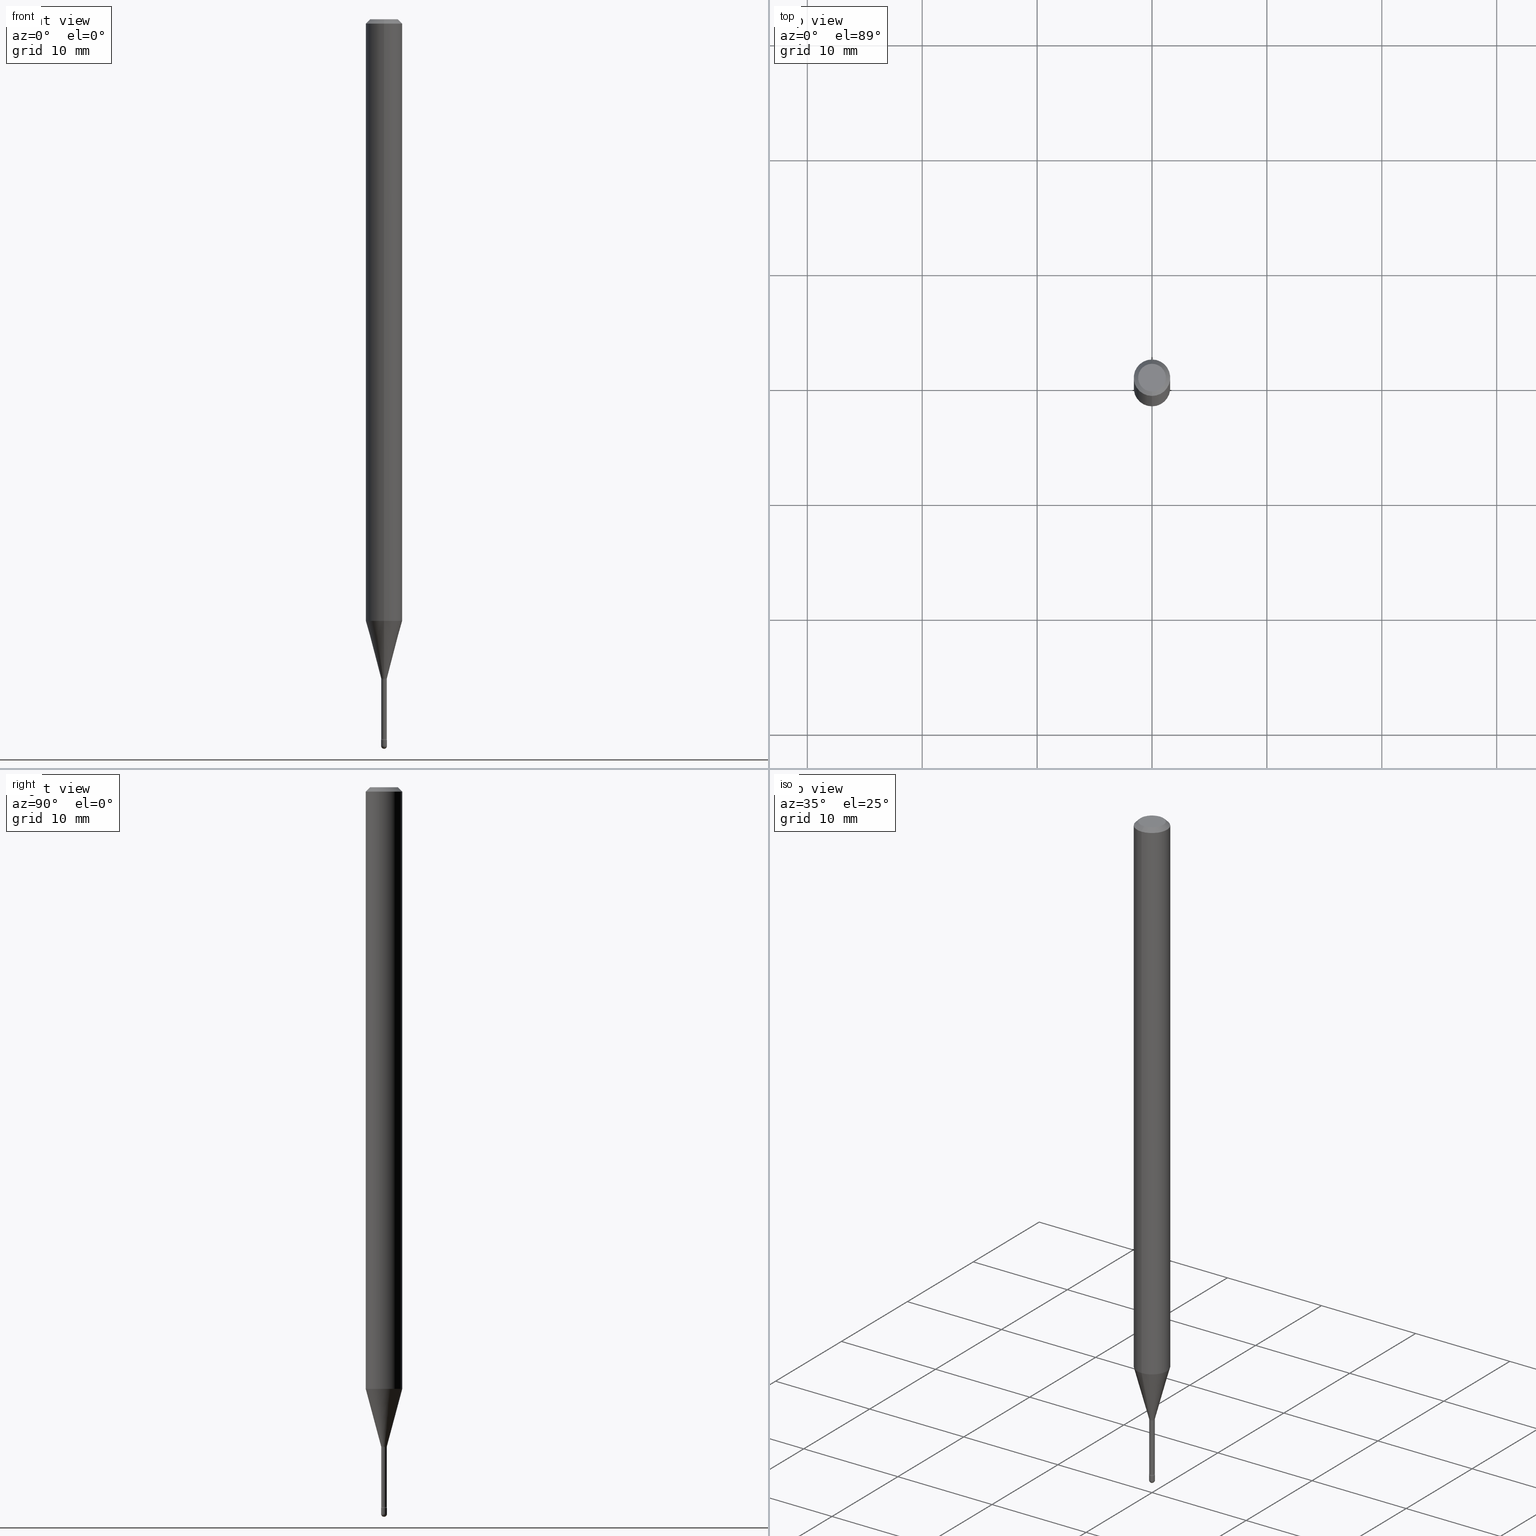
[diagram: canonical four-view strip — front | top / right | iso, engineering-drawing reading convention]
A machine part, canonical four-view strip (front | top / right | iso — engineering-drawing reading convention). The complete STEP part file that produces these views, byte-faithful:
ISO-10303-21;
HEADER;
FILE_DESCRIPTION (( 'STEP AP203' ),
    '1' );
FILE_NAME ('03888.STEP',
    '2024-04-09T20:58:14',
    ( '' ),
    ( '' ),
    'SwSTEP 2.0',
    'SolidWorks 2023',
    '' );
FILE_SCHEMA (( 'CONFIG_CONTROL_DESIGN' ));
ENDSEC;

DATA;
#1 = ORIENTED_EDGE ( 'NONE', *, *, #83, .T. ) ;
#2 = APPROVAL ( #254, 'UNSPECIFIED' ) ;
#3 = DIRECTION ( 'NONE',  ( 4.937700262164548042E-15, 0.7071067811865451302, -0.7071067811865499042 ) ) ;
#4 = DIRECTION ( 'NONE',  ( -6.982962677686265922E-15, -1.000000000000000000, 3.491553223842570577E-15 ) ) ;
#5 = AXIS2_PLACEMENT_3D ( 'NONE', #42, #261, #128 ) ;
#6 = ORIENTED_EDGE ( 'NONE', *, *, #66, .F. ) ;
#7 = DIRECTION ( 'NONE',  ( 6.982962677686265922E-15, 1.000000000000000000, -3.483106191921935554E-15 ) ) ;
#8 = ORIENTED_EDGE ( 'NONE', *, *, #11, .T. ) ;
#9 = ORIENTED_EDGE ( 'NONE', *, *, #522, .F. ) ;
#10 = CARTESIAN_POINT ( 'NONE',  ( 6.040183964621077171E-29, -8.624136462891145633E-15, -2.470000000000000195 ) ) ;
#11 = EDGE_CURVE ( 'NONE', #94, #16, #483, .T. ) ;
#12 = EDGE_LOOP ( 'NONE', ( #553, #371, #146, #44 ) ) ;
#13 = ORIENTED_EDGE ( 'NONE', *, *, #188, .T. ) ;
#14 = DIRECTION ( 'NONE',  ( 6.982962677686265922E-15, 1.000000000000000000, -3.491553223842568605E-15 ) ) ;
#15 = CC_DESIGN_PERSON_AND_ORGANIZATION_ASSIGNMENT ( #514, #244, ( #455 ) ) ;
#16 = VERTEX_POINT ( 'NONE', #231 ) ;
#17 = CIRCLE ( 'NONE', #501, 0.009400000000000002104 ) ;
#18 = CIRCLE ( 'NONE', #93, 0.01500000000000000638 ) ;
#19 = DIRECTION ( 'NONE',  ( -2.438088387897960049E-29, 3.491481338843145188E-15, 1.000000000000000000 ) ) ;
#20 = LENGTH_MEASURE_WITH_UNIT ( LENGTH_MEASURE( 0.02539999999999999897 ), #488 );
#21 = ORIENTED_EDGE ( 'NONE', *, *, #432, .T. ) ;
#22 = CARTESIAN_POINT ( 'NONE',  ( -0.01000000000000000021, -8.587819446754991563E-15, -2.470000000000000195 ) ) ;
#23 = DATE_TIME_ROLE ( 'classification_date' ) ;
#24 = ADVANCED_FACE ( 'NONE', ( #394 ), #222, .T. ) ;
#25 = DIMENSIONAL_EXPONENTS ( 1.000000000000000000, 0.000000000000000000, 0.000000000000000000, 0.000000000000000000, 0.000000000000000000, 0.000000000000000000, 0.000000000000000000 ) ;
#26 = ORIENTED_EDGE ( 'NONE', *, *, #168, .F. ) ;
#27 = DIRECTION ( 'NONE',  ( 2.445418609158330571E-29, -3.491553223842568999E-15, -1.000000000000000000 ) ) ;
#28 = PERSON_AND_ORGANIZATION ( #210, #191 ) ;
#29 = CYLINDRICAL_SURFACE ( 'NONE', #554, 0.06250000000000000000 ) ;
#30 = CONICAL_SURFACE ( 'NONE', #256, 0.009911112605663977004, 0.2617993877991500740 ) ;
#31 = ORIENTED_EDGE ( 'NONE', *, *, #404, .F. ) ;
#32 = DIRECTION ( 'NONE',  ( -6.982962677686265133E-15, -1.000000000000000000, 0.000000000000000000 ) ) ;
#33 = CIRCLE ( 'NONE', #536, 0.01000000000000000021 ) ;
#34 = CALENDAR_DATE ( 2024, 9, 4 ) ;
#35 = CARTESIAN_POINT ( 'NONE',  ( 3.840629472727447874E-16, 0.04749999999999999362, -2.485923956665948360E-16 ) ) ;
#36 = ADVANCED_FACE ( 'NONE', ( #265 ), #495, .T. ) ;
#37 = VERTEX_POINT ( 'NONE', #433 ) ;
#38 = ORIENTED_EDGE ( 'NONE', *, *, #419, .T. ) ;
#39 = PERSON_AND_ORGANIZATION ( #210, #191 ) ;
#40 = AXIS2_PLACEMENT_3D ( 'NONE', #199, #421, #32 ) ;
#41 = AXIS2_PLACEMENT_3D ( 'NONE', #354, #490, #7 ) ;
#42 = CARTESIAN_POINT ( 'NONE',  ( 6.089217327400989947E-29, -8.693788533719431716E-15, -2.489999999999999769 ) ) ;
#43 = EDGE_CURVE ( 'NONE', #398, #420, #33, .T. ) ;
#44 = ORIENTED_EDGE ( 'NONE', *, *, #90, .F. ) ;
#45 = DIRECTION ( 'NONE',  ( 1.000000000000000000, -6.982962677686235945E-15, 0.000000000000000000 ) ) ;
#46 = LINE ( 'NONE', #272, #123 ) ;
#47 = CONICAL_SURFACE ( 'NONE', #435, 0.009911112605663977004, 0.2617993877991500740 ) ;
#48 = CARTESIAN_POINT ( 'NONE',  ( 0.000000000000000000, 0.000000000000000000, 0.000000000000000000 ) ) ;
#49 = AXIS2_PLACEMENT_3D ( 'NONE', #527, #141, #565 ) ;
#50 = CARTESIAN_POINT ( 'NONE',  ( 6.030036982291310238E-29, -8.609294685319429365E-15, -2.465800000000000214 ) ) ;
#51 = CC_DESIGN_APPROVAL ( #312, ( #53 ) ) ;
#52 = CARTESIAN_POINT ( 'NONE',  ( -6.563984917019559422E-17, -0.009400000000007898565, -2.261974787463811420 ) ) ;
#53 = PRODUCT_DEFINITION ( 'UNKNOWN', '', #96, #234 ) ;
#54 = CARTESIAN_POINT ( 'NONE',  ( -1.703842893354847853E-16, -0.02440000000000863700, -2.465800000000000214 ) ) ;
#55 = CARTESIAN_POINT ( 'NONE',  ( 4.440892098501133005E-16, 0.06249999999999995143, -0.01500000000000030129 ) ) ;
#56 = DIRECTION ( 'NONE',  ( -2.445468806185136597E-29, 3.491481338843145583E-15, 1.000000000000000000 ) ) ;
#57 = LINE ( 'NONE', #431, #347 ) ;
#58 = EDGE_LOOP ( 'NONE', ( #413, #9 ) ) ;
#59 = CIRCLE ( 'NONE', #387, 0.009400000000000024655 ) ;
#60 = ORIENTED_EDGE ( 'NONE', *, *, #326, .T. ) ;
#61 = DIRECTION ( 'NONE',  ( -2.445418609158330571E-29, 3.491553223842568999E-15, 1.000000000000000000 ) ) ;
#62 = CARTESIAN_POINT ( 'NONE',  ( 0.01000000000000000021, -8.693788533719433294E-15, -2.470000000000000195 ) ) ;
#63 = CIRCLE ( 'NONE', #523, 0.04749999999999999362 ) ;
#64 = VECTOR ( 'NONE', #3, 39.37007874015748143 ) ;
#65 = PLANE ( 'NONE',  #301 ) ;
#66 = EDGE_CURVE ( 'NONE', #468, #310, #437, .T. ) ;
#67 = LOCAL_TIME ( 16, 58, 14.00000000000000000, #340 ) ;
#68 = DIRECTION ( 'NONE',  ( 6.982962677686265133E-15, 1.000000000000000000, 0.000000000000000000 ) ) ;
#69 = APPROVAL_ROLE ( '' ) ;
#70 = ORIENTED_EDGE ( 'NONE', *, *, #487, .T. ) ;
#71 = DIRECTION ( 'NONE',  ( -6.982962677686265922E-15, -1.000000000000000000, 0.000000000000000000 ) ) ;
#72 = DIRECTION ( 'NONE',  ( 1.839019923739598738E-15, 0.2588190451025247363, 0.9659258262890673130 ) ) ;
#73 = EDGE_CURVE ( 'NONE', #468, #186, #315, .T. ) ;
#74 = EDGE_LOOP ( 'NONE', ( #384, #460, #539, #31 ) ) ;
#75 = DIRECTION ( 'NONE',  ( -6.982962677686266711E-15, -1.000000000000000000, 3.491553223842569394E-15 ) ) ;
#76 = CC_DESIGN_APPROVAL ( #2, ( #96 ) ) ;
#77 = VERTEX_POINT ( 'NONE', #52 ) ;
#78 = CALENDAR_DATE ( 2024, 9, 4 ) ;
#79 = ORIENTED_EDGE ( 'NONE', *, *, #163, .T. ) ;
#80 = CARTESIAN_POINT ( 'NONE',  ( 5.521981425071489168E-29, -7.884250154350085352E-15, -2.258092501787273498 ) ) ;
#81 = CIRCLE ( 'NONE', #237, 0.01499999999999999771 ) ;
#82 = LINE ( 'NONE', #87, #338 ) ;
#83 = EDGE_CURVE ( 'NONE', #507, #77, #46, .T. ) ;
#84 = AXIS2_PLACEMENT_3D ( 'NONE', #321, #531, #98 ) ;
#85 = CYLINDRICAL_SURFACE ( 'NONE', #368, 0.01000000000000000021 ) ;
#86 = EDGE_LOOP ( 'NONE', ( #408, #428, #211, #70 ) ) ;
#87 = CARTESIAN_POINT ( 'NONE',  ( -6.920892941964220806E-17, -0.009911112605671861323, -2.258092501787273498 ) ) ;
#88 = ORIENTED_EDGE ( 'NONE', *, *, #226, .F. ) ;
#89 = DIRECTION ( 'NONE',  ( -2.445468806185136597E-29, 3.491481338843145583E-15, 1.000000000000000000 ) ) ;
#90 = EDGE_CURVE ( 'NONE', #288, #175, #213, .T. ) ;
#91 = CARTESIAN_POINT ( 'NONE',  ( -1.169113584055446105E-44, 1.669184350826100908E-30, 4.780733988912460139E-16 ) ) ;
#92 = CIRCLE ( 'NONE', #328, 0.01000000000000000021 ) ;
#93 = AXIS2_PLACEMENT_3D ( 'NONE', #350, #221, #526 ) ;
#94 = VERTEX_POINT ( 'NONE', #356 ) ;
#95 = CARTESIAN_POINT ( 'NONE',  ( 6.040307951277287977E-29, -8.623958906942569995E-15, -2.470000000000000195 ) ) ;
#96 = PRODUCT_DEFINITION_FORMATION_WITH_SPECIFIED_SOURCE ( 'ANY', '', #149, .NOT_KNOWN. ) ;
#97 = CARTESIAN_POINT ( 'NONE',  ( 6.040307951277287977E-29, -8.623958906942569995E-15, -2.470000000000000195 ) ) ;
#98 = DIRECTION ( 'NONE',  ( -6.982962677686265922E-15, -1.000000000000000000, 0.000000000000000000 ) ) ;
#99 = VERTEX_POINT ( 'NONE', #172 ) ;
#100 = FACE_OUTER_BOUND ( 'NONE', #86, .T. ) ;
#101 = ADVANCED_FACE ( 'NONE', ( #351 ), #219, .F. ) ;
#102 = VECTOR ( 'NONE', #369, 39.37007874015748143 ) ;
#103 = VERTEX_POINT ( 'NONE', #139 ) ;
#104 = LOCAL_TIME ( 16, 58, 14.00000000000000000, #154 ) ;
#105 = ORIENTED_EDGE ( 'NONE', *, *, #336, .T. ) ;
#106 = DIRECTION ( 'NONE',  ( 1.000000000000000000, -6.982962677686235945E-15, 0.000000000000000000 ) ) ;
#107 = CC_DESIGN_DATE_AND_TIME_ASSIGNMENT ( #555, #162, ( #53 ) ) ;
#108 = DATE_AND_TIME ( #423, #67 ) ;
#109 = CIRCLE ( 'NONE', #543, 0.01000000000000000021 ) ;
#110 = CIRCLE ( 'NONE', #424, 0.01500000000000002720 ) ;
#111 = FACE_OUTER_BOUND ( 'NONE', #195, .T. ) ;
#112 = APPROVAL_DATE_TIME ( #108, #2 ) ;
#113 = DIRECTION ( 'NONE',  ( 1.000000000000000000, -6.982962677686235945E-15, 0.000000000000000000 ) ) ;
#114 = EDGE_LOOP ( 'NONE', ( #198, #21 ) ) ;
#115 = DATE_AND_TIME ( #293, #378 ) ;
#116 = ADVANCED_FACE ( 'NONE', ( #100 ), #357, .F. ) ;
#117 = DIRECTION ( 'NONE',  ( 1.000000000000000000, -6.982962677686235945E-15, 0.000000000000000000 ) ) ;
#118 = MANIFOLD_SOLID_BREP ( 'Body-Move/Copy2[1]', #446 ) ;
#119 = ORIENTED_EDGE ( 'NONE', *, *, #163, .F. ) ;
#120 = FACE_OUTER_BOUND ( 'NONE', #548, .T. ) ;
#121 = CC_DESIGN_DATE_AND_TIME_ASSIGNMENT ( #415, #23, ( #455 ) ) ;
#122 = CONICAL_SURFACE ( 'NONE', #493, 0.06250000000000000000, 0.7853981633974483900 ) ;
#123 = VECTOR ( 'NONE', #441, 39.37007874015748143 ) ;
#124 = APPROVAL_DATE_TIME ( #297, #312 ) ;
#125 = CC_DESIGN_APPROVAL ( #524, ( #455 ) ) ;
#126 = ORIENTED_EDGE ( 'NONE', *, *, #364, .T. ) ;
#127 = LINE ( 'NONE', #300, #180 ) ;
#128 = DIRECTION ( 'NONE',  ( -7.105427357601000281E-15, -1.000000000000000000, 0.000000000000000000 ) ) ;
#129 = CIRCLE ( 'NONE', #443, 0.01000000000000008347 ) ;
#130 = DIRECTION ( 'NONE',  ( -6.982962677686265922E-15, -1.000000000000000000, 0.000000000000000000 ) ) ;
#131 = CARTESIAN_POINT ( 'NONE',  ( -7.105427357594942569E-17, -0.01000000000000873281, -2.489999999999999769 ) ) ;
#132 = AXIS2_PLACEMENT_3D ( 'NONE', #335, #517, #286 ) ;
#133 = ADVANCED_FACE ( 'NONE', ( #444 ), #448, .F. ) ;
#134 = DIRECTION ( 'NONE',  ( -2.445418609158330571E-29, 3.491553223842568999E-15, 1.000000000000000000 ) ) ;
#135 = DIRECTION ( 'NONE',  ( -2.445418609158330571E-29, 3.491553223842568999E-15, 1.000000000000000000 ) ) ;
#136 = LINE ( 'NONE', #260, #64 ) ;
#137 = ORIENTED_EDGE ( 'NONE', *, *, #188, .F. ) ;
#138 = ORIENTED_EDGE ( 'NONE', *, *, #535, .T. ) ;
#139 = CARTESIAN_POINT ( 'NONE',  ( 7.105427357607040490E-17, 0.009999999999991376898, -2.470000000000000195 ) ) ;
#140 = EDGE_CURVE ( 'NONE', #333, #183, #136, .T. ) ;
#141 = DIRECTION ( 'NONE',  ( -2.445468806185136597E-29, 3.491481338843145583E-15, 1.000000000000000000 ) ) ;
#142 = APPROVAL_PERSON_ORGANIZATION ( #551, #2, #69 ) ;
#143 = DIRECTION ( 'NONE',  ( -2.445418609158330571E-29, 3.491553223842568999E-15, 1.000000000000000000 ) ) ;
#144 = ADVANCED_FACE ( 'NONE', ( #485 ), #436, .F. ) ;
#145 = CARTESIAN_POINT ( 'NONE',  ( 6.089217327400989947E-29, -8.693788533719431716E-15, -2.489999999999999769 ) ) ;
#146 = ORIENTED_EDGE ( 'NONE', *, *, #295, .F. ) ;
#147 = DIRECTION ( 'NONE',  ( 1.000000000000000000, -6.982962677686265922E-15, 4.876176775795935793E-29 ) ) ;
#148 = CIRCLE ( 'NONE', #228, 0.04749999999999999362 ) ;
#149 = PRODUCT ( '03888', '03888', '', ( #458 ) ) ;
#150 = AXIS2_PLACEMENT_3D ( 'NONE', #397, #311, #217 ) ;
#151 = ORIENTED_EDGE ( 'NONE', *, *, #542, .F. ) ;
#152 = CARTESIAN_POINT ( 'NONE',  ( 3.668127913737516210E-31, -5.237329835763882687E-17, -0.01500000000000008271 ) ) ;
#153 = APPLICATION_CONTEXT ( 'configuration controlled 3d designs of mechanical parts and assemblies' ) ;
#154 = COORDINATED_UNIVERSAL_TIME_OFFSET ( 5, 0, .BEHIND. ) ;
#155 = CARTESIAN_POINT ( 'NONE',  ( -4.364351673553912750E-16, -0.06250000000000005551, -0.01499999999999986587 ) ) ;
#156 = ORIENTED_EDGE ( 'NONE', *, *, #140, .F. ) ;
#157 = DIRECTION ( 'NONE',  ( -2.445418609158330571E-29, 3.491553223842568999E-15, 1.000000000000000000 ) ) ;
#158 = APPLICATION_PROTOCOL_DEFINITION ( 'international standard', 'config_control_design', 1994, #153 ) ;
#159 = EDGE_LOOP ( 'NONE', ( #105, #498, #225, #330 ) ) ;
#160 = CALENDAR_DATE ( 2024, 9, 4 ) ;
#161 = CARTESIAN_POINT ( 'NONE',  ( 5.531588783120004822E-29, -7.897642759363587821E-15, -2.261974787463811420 ) ) ;
#162 = DATE_TIME_ROLE ( 'creation_date' ) ;
#163 = EDGE_CURVE ( 'NONE', #349, #528, #57, .T. ) ;
#164 = UNCERTAINTY_MEASURE_WITH_UNIT (LENGTH_MEASURE( 1.000000000000000082E-05 ), #194, 'distance_accuracy_value', 'NONE');
#165 = DIRECTION ( 'NONE',  ( -1.000000000000000000, 6.982962677686265922E-15, -4.883557194083112340E-29 ) ) ;
#166 = EDGE_LOOP ( 'NONE', ( #119, #126, #1, #558 ) ) ;
#167 = AXIS2_PLACEMENT_3D ( 'NONE', #152, #414, #513 ) ;
#168 = EDGE_CURVE ( 'NONE', #420, #398, #504, .T. ) ;
#169 = AXIS2_PLACEMENT_3D ( 'NONE', #91, #317, #4 ) ;
#170 = DIRECTION ( 'NONE',  ( -1.000000000000000000, 6.982962677686265922E-15, -4.883557194083112340E-29 ) ) ;
#171 = DIRECTION ( 'NONE',  ( -6.982962677686265922E-15, -1.000000000000000000, 3.483106191921935554E-15 ) ) ;
#172 = CARTESIAN_POINT ( 'NONE',  ( -3.773273898774340269E-16, -0.04749999999999999362, 8.310516059844921448E-17 ) ) ;
#173 = CC_DESIGN_PERSON_AND_ORGANIZATION_ASSIGNMENT ( #241, #382, ( #96 ) ) ;
#174 = DIRECTION ( 'NONE',  ( 1.000000000000000000, -6.982962677686265922E-15, 4.876176775795935793E-29 ) ) ;
#175 = VERTEX_POINT ( 'NONE', #564 ) ;
#176 = CARTESIAN_POINT ( 'NONE',  ( 6.089217327400989947E-29, -8.693788533719431716E-15, -2.489999999999999769 ) ) ;
#177 = EDGE_LOOP ( 'NONE', ( #137, #363, #544, #515 ) ) ;
#178 = FACE_OUTER_BOUND ( 'NONE', #482, .T. ) ;
#179 = DIRECTION ( 'NONE',  ( -2.445468806185136597E-29, 3.491481338843145583E-15, 1.000000000000000000 ) ) ;
#180 = VECTOR ( 'NONE', #299, 39.37007874015748143 ) ;
#181 = CARTESIAN_POINT ( 'NONE',  ( 5.042032809805188543E-29, -7.198982556959635817E-15, -2.061828102118093309 ) ) ;
#182 = CARTESIAN_POINT ( 'NONE',  ( -4.364351673553916201E-16, -0.06250000000000000000, 6.962954753814066750E-16 ) ) ;
#183 = VERTEX_POINT ( 'NONE', #55 ) ;
#184 = EDGE_LOOP ( 'NONE', ( #477, #13, #206, #151 ) ) ;
#185 = DIRECTION ( 'NONE',  ( -6.982962677686265922E-15, -1.000000000000000000, 3.491553223842568999E-15 ) ) ;
#186 = VERTEX_POINT ( 'NONE', #440 ) ;
#187 = DIRECTION ( 'NONE',  ( -6.982962677686266711E-15, -1.000000000000000000, 3.491553223842569394E-15 ) ) ;
#188 = EDGE_CURVE ( 'NONE', #349, #103, #18, .T. ) ;
#189 = CIRCLE ( 'NONE', #167, 0.06250000000000000000 ) ;
#190 = AXIS2_PLACEMENT_3D ( 'NONE', #95, #438, #45 ) ;
#191 = ORGANIZATION ( 'UNSPECIFIED', 'UNSPECIFIED', '' ) ;
#192 = CARTESIAN_POINT ( 'NONE',  ( 6.089217327400989947E-29, -8.693788533719431716E-15, -2.489999999999999769 ) ) ;
#193 = AXIS2_PLACEMENT_3D ( 'NONE', #176, #451, #271 ) ;
#194 =( CONVERSION_BASED_UNIT ( 'INCH', #20 ) LENGTH_UNIT ( ) NAMED_UNIT ( #25 ) );
#195 = EDGE_LOOP ( 'NONE', ( #246, #399, #534, #242 ) ) ;
#196 = PRODUCT_DEFINITION_SHAPE ( 'NONE', 'NONE',  #53 ) ;
#197 = DIRECTION ( 'NONE',  ( -6.982962677686265922E-15, -1.000000000000000000, 0.000000000000000000 ) ) ;
#198 = ORIENTED_EDGE ( 'NONE', *, *, #342, .T. ) ;
#199 = CARTESIAN_POINT ( 'NONE',  ( -1.703842893354895678E-16, -0.02440000000000789801, -2.261974787463811420 ) ) ;
#200 = PERSON_AND_ORGANIZATION ( #210, #191 ) ;
#201 = AXIS2_PLACEMENT_3D ( 'NONE', #473, #258, #229 ) ;
#202 = CARTESIAN_POINT ( 'NONE',  ( -1.169113584055446105E-44, 1.669184350826100908E-30, 4.780733988912460139E-16 ) ) ;
#203 = AXIS2_PLACEMENT_3D ( 'NONE', #233, #407, #14 ) ;
#204 = EDGE_CURVE ( 'NONE', #183, #310, #453, .T. ) ;
#205 = AXIS2_PLACEMENT_3D ( 'NONE', #269, #56, #439 ) ;
#206 = ORIENTED_EDGE ( 'NONE', *, *, #522, .T. ) ;
#207 = DIRECTION ( 'NONE',  ( 6.982962677686265922E-15, 1.000000000000000000, -3.483106191921935554E-15 ) ) ;
#208 = COORDINATED_UNIVERSAL_TIME_OFFSET ( 5, 0, .BEHIND. ) ;
#209 = DIRECTION ( 'NONE',  ( -6.982962677686265922E-15, -1.000000000000000000, 0.000000000000000000 ) ) ;
#210 = PERSON ( 'UNSPECIFIED', 'UNSPECIFIED', 'UNSPECIFIED', ('UNSPECIFIED'), ('UNSPECIFIED'), ('UNSPECIFIED') ) ;
#211 = ORIENTED_EDGE ( 'NONE', *, *, #404, .T. ) ;
#212 = CC_DESIGN_PERSON_AND_ORGANIZATION_ASSIGNMENT ( #200, #248, ( #53 ) ) ;
#213 = CIRCLE ( 'NONE', #205, 0.01000000000000000021 ) ;
#214 = ORIENTED_EDGE ( 'NONE', *, *, #497, .T. ) ;
#215 = CARTESIAN_POINT ( 'NONE',  ( 6.029913206462612511E-29, -8.609471939351006793E-15, -2.465800000000000214 ) ) ;
#216 = ADVANCED_FACE ( 'NONE', ( #178 ), #496, .T. ) ;
#217 = DIRECTION ( 'NONE',  ( -6.982962677686265922E-15, -1.000000000000000000, 3.491553223842568999E-15 ) ) ;
#218 = TOROIDAL_SURFACE ( 'NONE', #365, 0.02440000000000000155, 0.01500000000000002720 ) ;
#219 = PLANE ( 'NONE',  #339 ) ;
#220 = LOCAL_TIME ( 16, 58, 14.00000000000000000, #546 ) ;
#221 = DIRECTION ( 'NONE',  ( 1.000000000000000000, -7.105427357601001070E-15, 4.926316388879427011E-29 ) ) ;
#222 = CYLINDRICAL_SURFACE ( 'NONE', #169, 0.009400000000000012512 ) ;
#223 = FACE_OUTER_BOUND ( 'NONE', #392, .T. ) ;
#224 = CARTESIAN_POINT ( 'NONE',  ( 3.668127913737516210E-31, -5.237329835763882687E-17, -0.01500000000000008271 ) ) ;
#225 = ORIENTED_EDGE ( 'NONE', *, *, #73, .F. ) ;
#226 = EDGE_CURVE ( 'NONE', #186, #468, #562, .T. ) ;
#227 = ORIENTED_EDGE ( 'NONE', *, *, #395, .F. ) ;
#228 = AXIS2_PLACEMENT_3D ( 'NONE', #447, #381, #187 ) ;
#229 = DIRECTION ( 'NONE',  ( -6.982962677686265922E-15, -1.000000000000000000, 0.000000000000000000 ) ) ;
#230 =( GEOMETRIC_REPRESENTATION_CONTEXT ( 3 ) GLOBAL_UNCERTAINTY_ASSIGNED_CONTEXT ( ( #164 ) ) GLOBAL_UNIT_ASSIGNED_CONTEXT ( ( #194, #358, #417 ) ) REPRESENTATION_CONTEXT ( 'NONE', 'WORKASPACE' ) );
#231 = CARTESIAN_POINT ( 'NONE',  ( -6.920892941964220806E-17, -0.009911112605671861323, -2.258092501787273498 ) ) ;
#232 = EDGE_CURVE ( 'NONE', #94, #528, #110, .T. ) ;
#233 = CARTESIAN_POINT ( 'NONE',  ( 3.316907271900976096E-16, 0.04749999999999999362, 3.181611254606465954E-17 ) ) ;
#234 = DESIGN_CONTEXT ( 'detailed design', #153, 'design' ) ;
#235 = CC_DESIGN_PERSON_AND_ORGANIZATION_ASSIGNMENT ( #550, #281, ( #96 ) ) ;
#236 = CARTESIAN_POINT ( 'NONE',  ( -4.287811248607203282E-16, -0.06250000000000005551, -0.01499999999999986587 ) ) ;
#237 = AXIS2_PLACEMENT_3D ( 'NONE', #54, #165, #434 ) ;
#238 = DIRECTION ( 'NONE',  ( -2.445418609158330571E-29, 3.491553223842568999E-15, 1.000000000000000000 ) ) ;
#239 = APPROVAL_PERSON_ORGANIZATION ( #541, #524, #510 ) ;
#240 = CARTESIAN_POINT ( 'NONE',  ( 6.892264536879014190E-17, 0.009399999999991415223, -2.465800000000000214 ) ) ;
#241 = PERSON_AND_ORGANIZATION ( #210, #191 ) ;
#242 = ORIENTED_EDGE ( 'NONE', *, *, #204, .T. ) ;
#243 = CARTESIAN_POINT ( 'NONE',  ( 3.668127913737516210E-31, -5.237329835763882687E-17, -0.01500000000000008271 ) ) ;
#244 = PERSON_AND_ORGANIZATION_ROLE ( 'classification_officer' ) ;
#245 = ADVANCED_FACE ( 'NONE', ( #532 ), #257, .F. ) ;
#246 = ORIENTED_EDGE ( 'NONE', *, *, #469, .F. ) ;
#247 = CARTESIAN_POINT ( 'NONE',  ( 4.440892098500625669E-16, 0.06250000000000000000, 2.598513224010855008E-16 ) ) ;
#248 = PERSON_AND_ORGANIZATION_ROLE ( 'creator' ) ;
#249 = CIRCLE ( 'NONE', #466, 0.01000000000000000021 ) ;
#250 = AXIS2_PLACEMENT_3D ( 'NONE', #425, #170, #418 ) ;
#251 = ORIENTED_EDGE ( 'NONE', *, *, #469, .T. ) ;
#252 = DIRECTION ( 'NONE',  ( -6.982962677686265922E-15, -1.000000000000000000, 0.000000000000000000 ) ) ;
#253 = CC_DESIGN_PERSON_AND_ORGANIZATION_ASSIGNMENT ( #39, #505, ( #149 ) ) ;
#254 = APPROVAL_STATUS ( 'not_yet_approved' ) ;
#255 = DIRECTION ( 'NONE',  ( -2.445418609158330571E-29, 3.491553223842568999E-15, 1.000000000000000000 ) ) ;
#256 = AXIS2_PLACEMENT_3D ( 'NONE', #292, #157, #252 ) ;
#257 = TOROIDAL_SURFACE ( 'NONE', #403, 0.02440000000000002583, 0.01500000000000000291 ) ;
#258 = DIRECTION ( 'NONE',  ( -2.445418609158330571E-29, 3.491553223842568999E-15, 1.000000000000000000 ) ) ;
#259 = APPROVAL_PERSON_ORGANIZATION ( #28, #312, #454 ) ;
#260 = CARTESIAN_POINT ( 'NONE',  ( 4.364351673553919652E-16, 0.06249999999999995143, -0.01500000000000030129 ) ) ;
#261 = DIRECTION ( 'NONE',  ( -1.000000000000000000, 7.105427357601001070E-15, -4.926315508542082329E-29 ) ) ;
#262 = DIRECTION ( 'NONE',  ( -2.445418609158330571E-29, 3.491553223842568999E-15, 1.000000000000000000 ) ) ;
#263 = FACE_OUTER_BOUND ( 'NONE', #12, .T. ) ;
#264 = VECTOR ( 'NONE', #452, 39.37007874015748143 ) ;
#265 = FACE_OUTER_BOUND ( 'NONE', #502, .T. ) ;
#266 = CLOSED_SHELL ( 'NONE', ( #476, #24, #144, #216, #411, #509, #442, #319, #429, #133, #101, #245, #388, #116 ) ) ;
#267 = DIRECTION ( 'NONE',  ( -6.982962677686265922E-15, -1.000000000000000000, 0.000000000000000000 ) ) ;
#268 = EDGE_LOOP ( 'NONE', ( #138, #79, #393, #402 ) ) ;
#269 = CARTESIAN_POINT ( 'NONE',  ( 6.089217327400989947E-29, -8.693788533719431716E-15, -2.489999999999999769 ) ) ;
#270 = ADVANCED_FACE ( 'NONE', ( #263 ), #406, .T. ) ;
#271 = DIRECTION ( 'NONE',  ( 6.982962677686265922E-15, 1.000000000000000000, 0.000000000000000000 ) ) ;
#272 = CARTESIAN_POINT ( 'NONE',  ( -6.563984917025098705E-17, -0.009400000000000012512, 5.108939991953662889E-16 ) ) ;
#273 = CIRCLE ( 'NONE', #345, 0.009400000000000002104 ) ;
#274 = AXIS2_PLACEMENT_3D ( 'NONE', #405, #61, #277 ) ;
#275 = EDGE_CURVE ( 'NONE', #37, #103, #313, .T. ) ;
#276 = ORIENTED_EDGE ( 'NONE', *, *, #463, .F. ) ;
#277 = DIRECTION ( 'NONE',  ( -6.982962677686265922E-15, -1.000000000000000000, 3.491553223842568999E-15 ) ) ;
#278 = ORIENTED_EDGE ( 'NONE', *, *, #395, .T. ) ;
#279 = CARTESIAN_POINT ( 'NONE',  ( 2.023187842436818941E-45, -2.889381108594921348E-31, -8.274361753407281692E-17 ) ) ;
#280 = CARTESIAN_POINT ( 'NONE',  ( 5.531475238710964543E-29, -7.897805361419880690E-15, -2.261974787463811420 ) ) ;
#281 = PERSON_AND_ORGANIZATION_ROLE ( 'creator' ) ;
#282 = AXIS2_PLACEMENT_3D ( 'NONE', #181, #134, #308 ) ;
#283 = ORIENTED_EDGE ( 'NONE', *, *, #518, .F. ) ;
#284 = FACE_OUTER_BOUND ( 'NONE', #166, .T. ) ;
#285 = EDGE_CURVE ( 'NONE', #94, #186, #478, .T. ) ;
#286 = DIRECTION ( 'NONE',  ( 1.000000000000000000, 0.000000000000000000, 0.000000000000000000 ) ) ;
#287 = CARTESIAN_POINT ( 'NONE',  ( 6.114099598607430906E-29, -8.728091023708289184E-15, -2.500000000000000000 ) ) ;
#288 = VERTEX_POINT ( 'NONE', #506 ) ;
#289 = LINE ( 'NONE', #247, #264 ) ;
#290 = APPROVAL_DATE_TIME ( #115, #524 ) ;
#291 = ORIENTED_EDGE ( 'NONE', *, *, #43, .F. ) ;
#292 = CARTESIAN_POINT ( 'NONE',  ( 5.521981425071489168E-29, -7.884250154350085352E-15, -2.258092501787273498 ) ) ;
#293 = CALENDAR_DATE ( 2024, 9, 4 ) ;
#294 = CIRCLE ( 'NONE', #5, 0.01000000000000008347 ) ;
#295 = EDGE_CURVE ( 'NONE', #175, #298, #355, .T. ) ;
#296 = VERTEX_POINT ( 'NONE', #287 ) ;
#297 = DATE_AND_TIME ( #160, #359 ) ;
#298 = VERTEX_POINT ( 'NONE', #131 ) ;
#299 = DIRECTION ( 'NONE',  ( -2.445468806185136877E-29, 3.491481338843145188E-15, 1.000000000000000000 ) ) ;
#300 = CARTESIAN_POINT ( 'NONE',  ( -0.01000000000000000021, 7.105427357601002007E-17, -4.918935090254906272E-31 ) ) ;
#301 = AXIS2_PLACEMENT_3D ( 'NONE', #334, #19, #147 ) ;
#302 = DIRECTION ( 'NONE',  ( -6.982962677686265922E-15, -1.000000000000000000, 0.000000000000000000 ) ) ;
#303 = DIRECTION ( 'NONE',  ( -6.982962677686265922E-15, -1.000000000000000000, 3.491553223842568999E-15 ) ) ;
#304 = ORIENTED_EDGE ( 'NONE', *, *, #326, .F. ) ;
#305 = DIRECTION ( 'NONE',  ( -2.445418609158330571E-29, 3.491553223842568605E-15, 1.000000000000000000 ) ) ;
#306 = DIRECTION ( 'NONE',  ( -6.982962677686265922E-15, -1.000000000000000000, 0.000000000000000000 ) ) ;
#307 = ORIENTED_EDGE ( 'NONE', *, *, #379, .T. ) ;
#308 = DIRECTION ( 'NONE',  ( -6.982962677686265922E-15, -1.000000000000000000, 4.370956789862821150E-15 ) ) ;
#309 = CARTESIAN_POINT ( 'NONE',  ( 6.982962677692306673E-17, 0.009999999999991375163, -2.470000000000000195 ) ) ;
#310 = VERTEX_POINT ( 'NONE', #155 ) ;
#311 = DIRECTION ( 'NONE',  ( -2.445418609158330571E-29, 3.491553223842568999E-15, 1.000000000000000000 ) ) ;
#312 = APPROVAL ( #373, 'UNSPECIFIED' ) ;
#313 = CIRCLE ( 'NONE', #422, 0.01000000000000000021 ) ;
#314 = ORIENTED_EDGE ( 'NONE', *, *, #432, .F. ) ;
#315 = CIRCLE ( 'NONE', #367, 0.06250000000000000000 ) ;
#316 = DIRECTION ( 'NONE',  ( 1.000000000000000000, -7.105427357601001070E-15, 4.926316388879427011E-29 ) ) ;
#317 = DIRECTION ( 'NONE',  ( -2.445418609158330571E-29, 3.491553223842568999E-15, 1.000000000000000000 ) ) ;
#318 = ORIENTED_EDGE ( 'NONE', *, *, #168, .T. ) ;
#319 = ADVANCED_FACE ( 'NONE', ( #459 ), #29, .T. ) ;
#320 = EDGE_LOOP ( 'NONE', ( #337, #8, #362, #88 ) ) ;
#321 = CARTESIAN_POINT ( 'NONE',  ( 5.521981425071489168E-29, -7.884250154350085352E-15, -2.258092501787273498 ) ) ;
#322 = CIRCLE ( 'NONE', #40, 0.01500000000000002720 ) ;
#323 = PRODUCT_RELATED_PRODUCT_CATEGORY ( 'detail', '', ( #149 ) ) ;
#324 = DIRECTION ( 'NONE',  ( -2.445418609158330571E-29, 3.491553223842568999E-15, 1.000000000000000000 ) ) ;
#325 = LINE ( 'NONE', #236, #102 ) ;
#326 = EDGE_CURVE ( 'NONE', #445, #288, #109, .T. ) ;
#327 = DIRECTION ( 'NONE',  ( -6.982962677686265922E-15, -1.000000000000000000, 3.491553223842568999E-15 ) ) ;
#328 = AXIS2_PLACEMENT_3D ( 'NONE', #341, #520, #302 ) ;
#329 = COORDINATED_UNIVERSAL_TIME_OFFSET ( 5, 0, .BEHIND. ) ;
#330 = ORIENTED_EDGE ( 'NONE', *, *, #529, .F. ) ;
#331 = LINE ( 'NONE', #366, #560 ) ;
#332 = APPROVAL_STATUS ( 'not_yet_approved' ) ;
#333 = VERTEX_POINT ( 'NONE', #35 ) ;
#334 = CARTESIAN_POINT ( 'NONE',  ( 6.040307951277287977E-29, -8.623958906942569995E-15, -2.470000000000000195 ) ) ;
#335 = CARTESIAN_POINT ( 'NONE',  ( 0.000000000000000000, 0.000000000000000000, 0.000000000000000000 ) ) ;
#336 = EDGE_CURVE ( 'NONE', #16, #94, #430, .T. ) ;
#337 = ORIENTED_EDGE ( 'NONE', *, *, #285, .F. ) ;
#338 = VECTOR ( 'NONE', #561, 39.37007874015748854 ) ;
#339 = AXIS2_PLACEMENT_3D ( 'NONE', #309, #361, #533 ) ;
#340 = COORDINATED_UNIVERSAL_TIME_OFFSET ( 5, 0, .BEHIND. ) ;
#341 = CARTESIAN_POINT ( 'NONE',  ( 6.040183964621077171E-29, -8.624136462891145633E-15, -2.470000000000000195 ) ) ;
#342 = EDGE_CURVE ( 'NONE', #333, #99, #148, .T. ) ;
#343 = DIRECTION ( 'NONE',  ( -2.445418609158330571E-29, 3.491553223842568999E-15, 1.000000000000000000 ) ) ;
#344 = SPHERICAL_SURFACE ( 'NONE', #193, 0.01000000000000008347 ) ;
#345 = AXIS2_PLACEMENT_3D ( 'NONE', #427, #499, #197 ) ;
#346 = ORIENTED_EDGE ( 'NONE', *, *, #295, .T. ) ;
#347 = VECTOR ( 'NONE', #305, 39.37007874015748143 ) ;
#348 = DIRECTION ( 'NONE',  ( -2.445418609158330571E-29, 3.491553223842568999E-15, 1.000000000000000000 ) ) ;
#349 = VERTEX_POINT ( 'NONE', #240 ) ;
#350 = CARTESIAN_POINT ( 'NONE',  ( 1.733724275255249028E-16, 0.02439999999999141814, -2.465800000000000214 ) ) ;
#351 = FACE_OUTER_BOUND ( 'NONE', #58, .T. ) ;
#352 = EDGE_CURVE ( 'NONE', #445, #398, #331, .T. ) ;
#353 = DIRECTION ( 'NONE',  ( -6.982962677686265922E-15, -1.000000000000000000, 4.370956789862821150E-15 ) ) ;
#354 = CARTESIAN_POINT ( 'NONE',  ( 3.668127913737516210E-31, -5.237329835763882687E-17, -0.01500000000000008271 ) ) ;
#355 = CIRCLE ( 'NONE', #516, 0.01000000000000000021 ) ;
#356 = CARTESIAN_POINT ( 'NONE',  ( 2.572559502513586973E-16, 0.009911112605656092686, -2.258092501787273498 ) ) ;
#357 = TOROIDAL_SURFACE ( 'NONE', #274, 0.02440000000000000155, 0.01500000000000002720 ) ;
#358 =( NAMED_UNIT ( * ) PLANE_ANGLE_UNIT ( ) SI_UNIT ( $, .RADIAN. ) );
#359 = LOCAL_TIME ( 16, 58, 14.00000000000000000, #329 ) ;
#360 = DIRECTION ( 'NONE',  ( 7.105427357601000281E-15, 1.000000000000000000, 0.000000000000000000 ) ) ;
#361 = DIRECTION ( 'NONE',  ( -2.445418609158330571E-29, 3.491553223842568605E-15, 1.000000000000000000 ) ) ;
#362 = ORIENTED_EDGE ( 'NONE', *, *, #529, .T. ) ;
#363 = ORIENTED_EDGE ( 'NONE', *, *, #535, .F. ) ;
#364 = EDGE_CURVE ( 'NONE', #349, #507, #59, .T. ) ;
#365 = AXIS2_PLACEMENT_3D ( 'NONE', #161, #348, #390 ) ;
#366 = CARTESIAN_POINT ( 'NONE',  ( 0.01000000000000000021, -6.982962677686265724E-17, 4.876176775795935968E-31 ) ) ;
#367 = AXIS2_PLACEMENT_3D ( 'NONE', #484, #135, #353 ) ;
#368 = AXIS2_PLACEMENT_3D ( 'NONE', #48, #566, #174 ) ;
#369 = DIRECTION ( 'NONE',  ( -4.851104656540964275E-15, -0.7071067811865500152, -0.7071067811865450192 ) ) ;
#370 = ADVANCED_FACE ( 'NONE', ( #545 ), #65, .T. ) ;
#371 = ORIENTED_EDGE ( 'NONE', *, *, #518, .T. ) ;
#372 = DIRECTION ( 'NONE',  ( -2.445468806185136597E-29, 3.491481338843145583E-15, 1.000000000000000000 ) ) ;
#373 = APPROVAL_STATUS ( 'not_yet_approved' ) ;
#374 = EDGE_LOOP ( 'NONE', ( #475, #426, #380, #525 ) ) ;
#375 = DIRECTION ( 'NONE',  ( -2.445418609158330571E-29, 3.491553223842568999E-15, 1.000000000000000000 ) ) ;
#376 = AXIS2_PLACEMENT_3D ( 'NONE', #416, #324, #508 ) ;
#377 = CARTESIAN_POINT ( 'NONE',  ( 6.089217327400989947E-29, -8.693788533719431716E-15, -2.489999999999999769 ) ) ;
#378 = LOCAL_TIME ( 16, 58, 14.00000000000000000, #208 ) ;
#379 = EDGE_CURVE ( 'NONE', #186, #183, #289, .T. ) ;
#380 = ORIENTED_EDGE ( 'NONE', *, *, #66, .T. ) ;
#381 = DIRECTION ( 'NONE',  ( -2.445418609158330571E-29, 3.491553223842568999E-15, 1.000000000000000000 ) ) ;
#382 = PERSON_AND_ORGANIZATION_ROLE ( 'design_supplier' ) ;
#383 = DIRECTION ( 'NONE',  ( -2.445418609158330571E-29, 3.491553223842568999E-15, 1.000000000000000000 ) ) ;
#384 = ORIENTED_EDGE ( 'NONE', *, *, #11, .F. ) ;
#385 = ORIENTED_EDGE ( 'NONE', *, *, #73, .T. ) ;
#386 = APPLICATION_PROTOCOL_DEFINITION ( 'international standard', 'config_control_design', 1994, #489 ) ;
#387 = AXIS2_PLACEMENT_3D ( 'NONE', #461, #143, #71 ) ;
#388 = ADVANCED_FACE ( 'NONE', ( #284 ), #537, .T. ) ;
#389 = ORIENTED_EDGE ( 'NONE', *, *, #352, .F. ) ;
#390 = DIRECTION ( 'NONE',  ( -6.982962677686265922E-15, -1.000000000000000000, 3.491553223842568999E-15 ) ) ;
#391 = FACE_OUTER_BOUND ( 'NONE', #512, .T. ) ;
#392 = EDGE_LOOP ( 'NONE', ( #491, #346, #470, #464, #26 ) ) ;
#393 = ORIENTED_EDGE ( 'NONE', *, *, #487, .F. ) ;
#394 = FACE_OUTER_BOUND ( 'NONE', #268, .T. ) ;
#395 = EDGE_CURVE ( 'NONE', #310, #183, #189, .T. ) ;
#396 = CARTESIAN_POINT ( 'NONE',  ( 7.042269065260418039E-17, 0.009911112605656092686, -2.258092501787273498 ) ) ;
#397 = CARTESIAN_POINT ( 'NONE',  ( 6.030036982291310238E-29, -8.609294685319429365E-15, -2.465800000000000214 ) ) ;
#398 = VERTEX_POINT ( 'NONE', #62 ) ;
#399 = ORIENTED_EDGE ( 'NONE', *, *, #342, .F. ) ;
#400 = DIRECTION ( 'NONE',  ( -2.445418609158330571E-29, 3.491553223842568999E-15, 1.000000000000000000 ) ) ;
#401 = AXIS2_PLACEMENT_3D ( 'NONE', #410, #457, #327 ) ;
#402 = ORIENTED_EDGE ( 'NONE', *, *, #83, .F. ) ;
#403 = AXIS2_PLACEMENT_3D ( 'NONE', #50, #238, #185 ) ;
#404 = EDGE_CURVE ( 'NONE', #16, #77, #322, .T. ) ;
#405 = CARTESIAN_POINT ( 'NONE',  ( 5.531588783120004822E-29, -7.897642759363587821E-15, -2.261974787463811420 ) ) ;
#406 = SPHERICAL_SURFACE ( 'NONE', #250, 0.01000000000000008347 ) ;
#407 = DIRECTION ( 'NONE',  ( 2.445418609158330571E-29, -3.491553223842568605E-15, -1.000000000000000000 ) ) ;
#408 = ORIENTED_EDGE ( 'NONE', *, *, #232, .F. ) ;
#409 = CIRCLE ( 'NONE', #481, 0.009400000000000024655 ) ;
#410 = CARTESIAN_POINT ( 'NONE',  ( -1.169113584055446105E-44, 1.669184350826100908E-30, 4.780733988912460139E-16 ) ) ;
#411 = ADVANCED_FACE ( 'NONE', ( #120 ), #538, .T. ) ;
#412 = CC_DESIGN_SECURITY_CLASSIFICATION ( #455, ( #96 ) ) ;
#413 = ORIENTED_EDGE ( 'NONE', *, *, #275, .F. ) ;
#414 = DIRECTION ( 'NONE',  ( -2.445418609158330571E-29, 3.491553223842568999E-15, 1.000000000000000000 ) ) ;
#415 = DATE_AND_TIME ( #34, #220 ) ;
#416 = CARTESIAN_POINT ( 'NONE',  ( -1.169113584055446105E-44, 1.669184350826100908E-30, 4.780733988912460139E-16 ) ) ;
#417 =( NAMED_UNIT ( * ) SI_UNIT ( $, .STERADIAN. ) SOLID_ANGLE_UNIT ( ) );
#418 = DIRECTION ( 'NONE',  ( 6.982962677686265922E-15, 1.000000000000000000, 0.000000000000000000 ) ) ;
#419 = EDGE_CURVE ( 'NONE', #296, #288, #129, .T. ) ;
#420 = VERTEX_POINT ( 'NONE', #22 ) ;
#421 = DIRECTION ( 'NONE',  ( -1.000000000000000000, 6.982962677686265922E-15, -4.883557194083112340E-29 ) ) ;
#422 = AXIS2_PLACEMENT_3D ( 'NONE', #10, #383, #306 ) ;
#423 = CALENDAR_DATE ( 2024, 9, 4 ) ;
#424 = AXIS2_PLACEMENT_3D ( 'NONE', #479, #316, #360 ) ;
#425 = CARTESIAN_POINT ( 'NONE',  ( 6.089217327400989947E-29, -8.693788533719431716E-15, -2.489999999999999769 ) ) ;
#426 = ORIENTED_EDGE ( 'NONE', *, *, #226, .T. ) ;
#427 = CARTESIAN_POINT ( 'NONE',  ( 5.531475238710964543E-29, -7.897805361419880690E-15, -2.261974787463811420 ) ) ;
#428 = ORIENTED_EDGE ( 'NONE', *, *, #336, .F. ) ;
#429 = ADVANCED_FACE ( 'NONE', ( #111 ), #122, .T. ) ;
#430 = CIRCLE ( 'NONE', #201, 0.009911112605663977004 ) ;
#431 = CARTESIAN_POINT ( 'NONE',  ( 6.679101716144950638E-17, 0.009400000000000012512, 4.452527985871258376E-16 ) ) ;
#432 = EDGE_CURVE ( 'NONE', #99, #333, #63, .T. ) ;
#433 = CARTESIAN_POINT ( 'NONE',  ( -6.982962677680226008E-17, -0.01000000000000862178, -2.470000000000000195 ) ) ;
#434 = DIRECTION ( 'NONE',  ( -6.982962677686266711E-15, -1.000000000000000000, 0.000000000000000000 ) ) ;
#435 = AXIS2_PLACEMENT_3D ( 'NONE', #80, #255, #130 ) ;
#436 = TOROIDAL_SURFACE ( 'NONE', #150, 0.02440000000000002583, 0.01500000000000000291 ) ;
#437 = LINE ( 'NONE', #182, #556 ) ;
#438 = DIRECTION ( 'NONE',  ( -2.445468806185136597E-29, 3.491481338843145583E-15, 1.000000000000000000 ) ) ;
#439 = DIRECTION ( 'NONE',  ( 1.000000000000000000, -6.982962677686235945E-15, 0.000000000000000000 ) ) ;
#440 = CARTESIAN_POINT ( 'NONE',  ( 4.440892098501128074E-16, 0.06249999999999279743, -2.061828102118093753 ) ) ;
#441 = DIRECTION ( 'NONE',  ( -2.445418609158330571E-29, 3.491553223842568605E-15, 1.000000000000000000 ) ) ;
#442 = ADVANCED_FACE ( 'NONE', ( #549 ), #30, .T. ) ;
#443 = AXIS2_PLACEMENT_3D ( 'NONE', #145, #503, #68 ) ;
#444 = FACE_OUTER_BOUND ( 'NONE', #114, .T. ) ;
#445 = VERTEX_POINT ( 'NONE', #465 ) ;
#446 = CLOSED_SHELL ( 'NONE', ( #36, #270, #370, #559, #552 ) ) ;
#447 = CARTESIAN_POINT ( 'NONE',  ( 2.023187842436818941E-45, -2.889381108594921348E-31, -8.274361753407281692E-17 ) ) ;
#448 = PLANE ( 'NONE',  #203 ) ;
#449 = EDGE_CURVE ( 'NONE', #528, #77, #273, .T. ) ;
#450 = CARTESIAN_POINT ( 'NONE',  ( -4.364351673553412316E-16, -0.06250000000000720257, -2.061828102118092865 ) ) ;
#451 = DIRECTION ( 'NONE',  ( -1.000000000000000000, 6.982962677686265922E-15, -4.883557194083112340E-29 ) ) ;
#452 = DIRECTION ( 'NONE',  ( -2.445418609158330571E-29, 3.491553223842568605E-15, 1.000000000000000000 ) ) ;
#453 = CIRCLE ( 'NONE', #530, 0.06250000000000000000 ) ;
#454 = APPROVAL_ROLE ( '' ) ;
#455 = SECURITY_CLASSIFICATION ( '', '', #462 ) ;
#456 = ORIENTED_EDGE ( 'NONE', *, *, #90, .T. ) ;
#457 = DIRECTION ( 'NONE',  ( -2.445418609158330571E-29, 3.491553223842568999E-15, 1.000000000000000000 ) ) ;
#458 = MECHANICAL_CONTEXT ( 'NONE', #489, 'mechanical' ) ;
#459 = FACE_OUTER_BOUND ( 'NONE', #374, .T. ) ;
#460 = ORIENTED_EDGE ( 'NONE', *, *, #232, .T. ) ;
#461 = CARTESIAN_POINT ( 'NONE',  ( 6.029913206462612511E-29, -8.609471939351006793E-15, -2.465800000000000214 ) ) ;
#462 = SECURITY_CLASSIFICATION_LEVEL ( 'unclassified' ) ;
#463 = EDGE_CURVE ( 'NONE', #298, #445, #249, .T. ) ;
#464 = ORIENTED_EDGE ( 'NONE', *, *, #352, .T. ) ;
#465 = CARTESIAN_POINT ( 'NONE',  ( 0.01000000000000000021, -8.728703347107863365E-15, -2.489999999999999769 ) ) ;
#466 = AXIS2_PLACEMENT_3D ( 'NONE', #192, #372, #106 ) ;
#467 = SHAPE_DEFINITION_REPRESENTATION ( #196, #492 ) ;
#468 = VERTEX_POINT ( 'NONE', #450 ) ;
#469 = EDGE_CURVE ( 'NONE', #99, #310, #325, .T. ) ;
#470 = ORIENTED_EDGE ( 'NONE', *, *, #463, .T. ) ;
#471 = FACE_OUTER_BOUND ( 'NONE', #159, .T. ) ;
#472 = CARTESIAN_POINT ( 'NONE',  ( 6.679101716150980493E-17, 0.009399999999992103908, -2.261974787463811420 ) ) ;
#473 = CARTESIAN_POINT ( 'NONE',  ( 5.521981425071489168E-29, -7.884250154350085352E-15, -2.258092501787273498 ) ) ;
#474 = VECTOR ( 'NONE', #72, 39.37007874015748854 ) ;
#475 = ORIENTED_EDGE ( 'NONE', *, *, #379, .F. ) ;
#476 = ADVANCED_FACE ( 'NONE', ( #500 ), #218, .F. ) ;
#477 = ORIENTED_EDGE ( 'NONE', *, *, #364, .F. ) ;
#478 = LINE ( 'NONE', #396, #474 ) ;
#479 = CARTESIAN_POINT ( 'NONE',  ( 1.733724275255197506E-16, 0.02439999999999210509, -2.261974787463811420 ) ) ;
#480 = DIRECTION ( 'NONE',  ( 1.000000000000000000, -6.982962677686235945E-15, 0.000000000000000000 ) ) ;
#481 = AXIS2_PLACEMENT_3D ( 'NONE', #215, #262, #267 ) ;
#482 = EDGE_LOOP ( 'NONE', ( #314, #251, #278, #156 ) ) ;
#483 = CIRCLE ( 'NONE', #84, 0.009911112605663977004 ) ;
#484 = CARTESIAN_POINT ( 'NONE',  ( 5.042032809805188543E-29, -7.198982556959635817E-15, -2.061828102118093309 ) ) ;
#485 = FACE_OUTER_BOUND ( 'NONE', #184, .T. ) ;
#486 = DIRECTION ( 'NONE',  ( -2.445418609158330571E-29, 3.491553223842568605E-15, 1.000000000000000000 ) ) ;
#487 = EDGE_CURVE ( 'NONE', #77, #528, #17, .T. ) ;
#488 =( LENGTH_UNIT ( ) NAMED_UNIT ( * ) SI_UNIT ( $, .METRE. ) );
#489 = APPLICATION_CONTEXT ( 'configuration controlled 3d designs of mechanical parts and assemblies' ) ;
#490 = DIRECTION ( 'NONE',  ( 2.445418609158330571E-29, -3.491553223842568999E-15, -1.000000000000000000 ) ) ;
#491 = ORIENTED_EDGE ( 'NONE', *, *, #497, .F. ) ;
#492 = ADVANCED_BREP_SHAPE_REPRESENTATION ( '03888', ( #118, #494, #132 ), #230 ) ;
#493 = AXIS2_PLACEMENT_3D ( 'NONE', #243, #27, #207 ) ;
#494 = MANIFOLD_SOLID_BREP ( 'Body-Move/Copy2[2]', #266 ) ;
#495 = CYLINDRICAL_SURFACE ( 'NONE', #49, 0.01000000000000000021 ) ;
#496 = CONICAL_SURFACE ( 'NONE', #41, 0.06250000000000000000, 0.7853981633974483900 ) ;
#497 = EDGE_CURVE ( 'NONE', #175, #420, #127, .T. ) ;
#498 = ORIENTED_EDGE ( 'NONE', *, *, #285, .T. ) ;
#499 = DIRECTION ( 'NONE',  ( -2.445418609158330571E-29, 3.491553223842568999E-15, 1.000000000000000000 ) ) ;
#500 = FACE_OUTER_BOUND ( 'NONE', #74, .T. ) ;
#501 = AXIS2_PLACEMENT_3D ( 'NONE', #280, #557, #209 ) ;
#502 = EDGE_LOOP ( 'NONE', ( #456, #214, #291, #389, #60 ) ) ;
#503 = DIRECTION ( 'NONE',  ( 1.000000000000000000, -6.982962677686265922E-15, 4.883557194083112340E-29 ) ) ;
#504 = CIRCLE ( 'NONE', #190, 0.01000000000000000021 ) ;
#505 = PERSON_AND_ORGANIZATION_ROLE ( 'design_owner' ) ;
#506 = CARTESIAN_POINT ( 'NONE',  ( 6.982962677692383094E-17, 0.009999999999991347407, -2.489999999999999769 ) ) ;
#507 = VERTEX_POINT ( 'NONE', #521 ) ;
#508 = DIRECTION ( 'NONE',  ( -6.982962677686265922E-15, -1.000000000000000000, 3.491553223842570577E-15 ) ) ;
#509 = ADVANCED_FACE ( 'NONE', ( #471 ), #47, .T. ) ;
#510 = APPROVAL_ROLE ( '' ) ;
#511 = DIRECTION ( 'NONE',  ( -2.445468806185136597E-29, 3.491481338843145583E-15, 1.000000000000000000 ) ) ;
#512 = EDGE_LOOP ( 'NONE', ( #283, #38, #304, #276 ) ) ;
#513 = DIRECTION ( 'NONE',  ( -6.982962677686265922E-15, -1.000000000000000000, 3.483106191921935554E-15 ) ) ;
#514 = PERSON_AND_ORGANIZATION ( #210, #191 ) ;
#515 = ORIENTED_EDGE ( 'NONE', *, *, #275, .T. ) ;
#516 = AXIS2_PLACEMENT_3D ( 'NONE', #547, #89, #113 ) ;
#517 = DIRECTION ( 'NONE',  ( 0.000000000000000000, 0.000000000000000000, 1.000000000000000000 ) ) ;
#518 = EDGE_CURVE ( 'NONE', #296, #298, #294, .T. ) ;
#519 = EDGE_LOOP ( 'NONE', ( #563, #318 ) ) ;
#520 = DIRECTION ( 'NONE',  ( -2.445418609158330571E-29, 3.491553223842568999E-15, 1.000000000000000000 ) ) ;
#521 = CARTESIAN_POINT ( 'NONE',  ( -6.563984917019076245E-17, -0.009400000000008634088, -2.465800000000000214 ) ) ;
#522 = EDGE_CURVE ( 'NONE', #103, #37, #92, .T. ) ;
#523 = AXIS2_PLACEMENT_3D ( 'NONE', #279, #375, #75 ) ;
#524 = APPROVAL ( #332, 'UNSPECIFIED' ) ;
#525 = ORIENTED_EDGE ( 'NONE', *, *, #204, .F. ) ;
#526 = DIRECTION ( 'NONE',  ( 7.105427357600997914E-15, 1.000000000000000000, 0.000000000000000000 ) ) ;
#527 = CARTESIAN_POINT ( 'NONE',  ( 0.000000000000000000, 0.000000000000000000, 0.000000000000000000 ) ) ;
#528 = VERTEX_POINT ( 'NONE', #472 ) ;
#529 = EDGE_CURVE ( 'NONE', #16, #468, #82, .T. ) ;
#530 = AXIS2_PLACEMENT_3D ( 'NONE', #224, #400, #171 ) ;
#531 = DIRECTION ( 'NONE',  ( -2.445418609158330571E-29, 3.491553223842568999E-15, 1.000000000000000000 ) ) ;
#532 = FACE_OUTER_BOUND ( 'NONE', #177, .T. ) ;
#533 = DIRECTION ( 'NONE',  ( -6.982962677686265922E-15, -1.000000000000000000, 3.491553223842568605E-15 ) ) ;
#534 = ORIENTED_EDGE ( 'NONE', *, *, #140, .T. ) ;
#535 = EDGE_CURVE ( 'NONE', #507, #349, #409, .T. ) ;
#536 = AXIS2_PLACEMENT_3D ( 'NONE', #97, #179, #480 ) ;
#537 = CYLINDRICAL_SURFACE ( 'NONE', #376, 0.009400000000000012512 ) ;
#538 = CYLINDRICAL_SURFACE ( 'NONE', #401, 0.06250000000000000000 ) ;
#539 = ORIENTED_EDGE ( 'NONE', *, *, #449, .T. ) ;
#540 = DIRECTION ( 'NONE',  ( -2.445468806185136877E-29, 3.491481338843145188E-15, 1.000000000000000000 ) ) ;
#541 = PERSON_AND_ORGANIZATION ( #210, #191 ) ;
#542 = EDGE_CURVE ( 'NONE', #507, #37, #81, .T. ) ;
#543 = AXIS2_PLACEMENT_3D ( 'NONE', #377, #511, #117 ) ;
#544 = ORIENTED_EDGE ( 'NONE', *, *, #542, .T. ) ;
#545 = FACE_OUTER_BOUND ( 'NONE', #519, .T. ) ;
#546 = COORDINATED_UNIVERSAL_TIME_OFFSET ( 5, 0, .BEHIND. ) ;
#547 = CARTESIAN_POINT ( 'NONE',  ( 6.089217327400989947E-29, -8.693788533719431716E-15, -2.489999999999999769 ) ) ;
#548 = EDGE_LOOP ( 'NONE', ( #385, #307, #227, #6 ) ) ;
#549 = FACE_OUTER_BOUND ( 'NONE', #320, .T. ) ;
#550 = PERSON_AND_ORGANIZATION ( #210, #191 ) ;
#551 = PERSON_AND_ORGANIZATION ( #210, #191 ) ;
#552 = ADVANCED_FACE ( 'NONE', ( #223 ), #85, .T. ) ;
#553 = ORIENTED_EDGE ( 'NONE', *, *, #419, .F. ) ;
#554 = AXIS2_PLACEMENT_3D ( 'NONE', #202, #343, #303 ) ;
#555 = DATE_AND_TIME ( #78, #104 ) ;
#556 = VECTOR ( 'NONE', #486, 39.37007874015748143 ) ;
#557 = DIRECTION ( 'NONE',  ( -2.445418609158330571E-29, 3.491553223842568999E-15, 1.000000000000000000 ) ) ;
#558 = ORIENTED_EDGE ( 'NONE', *, *, #449, .F. ) ;
#559 = ADVANCED_FACE ( 'NONE', ( #391 ), #344, .T. ) ;
#560 = VECTOR ( 'NONE', #540, 39.37007874015748143 ) ;
#561 = DIRECTION ( 'NONE',  ( -1.807323732225328562E-15, -0.2588190451025179639, 0.9659258262890690894 ) ) ;
#562 = CIRCLE ( 'NONE', #282, 0.06250000000000000000 ) ;
#563 = ORIENTED_EDGE ( 'NONE', *, *, #43, .T. ) ;
#564 = CARTESIAN_POINT ( 'NONE',  ( -0.01000000000000000021, -8.587819446754991563E-15, -2.489999999999999769 ) ) ;
#565 = DIRECTION ( 'NONE',  ( 1.000000000000000000, -6.982962677686265922E-15, 4.876176775795935793E-29 ) ) ;
#566 = DIRECTION ( 'NONE',  ( -2.445468806185136597E-29, 3.491481338843145583E-15, 1.000000000000000000 ) ) ;
ENDSEC;
END-ISO-10303-21;
